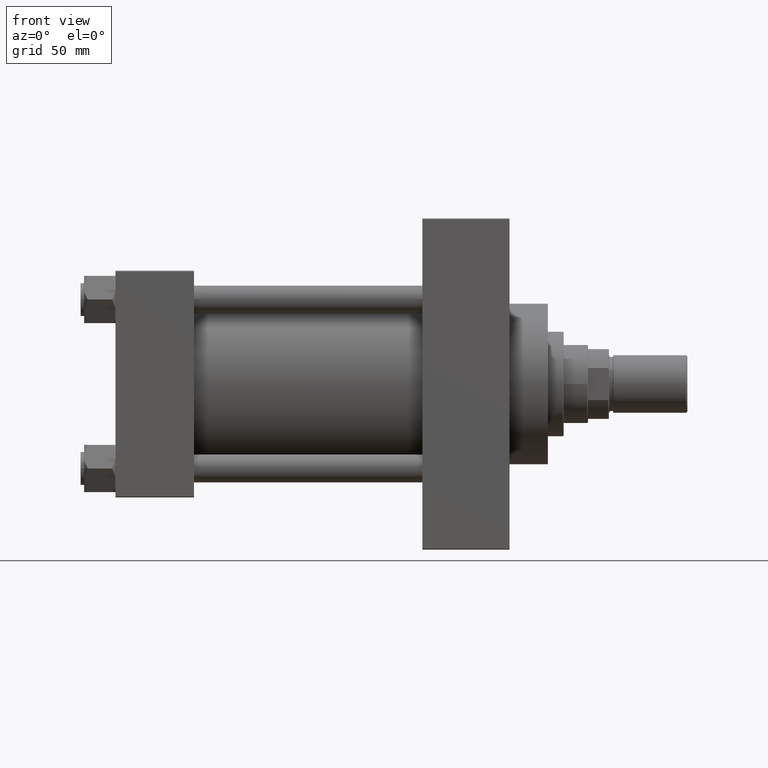
[diagram: clean part render]
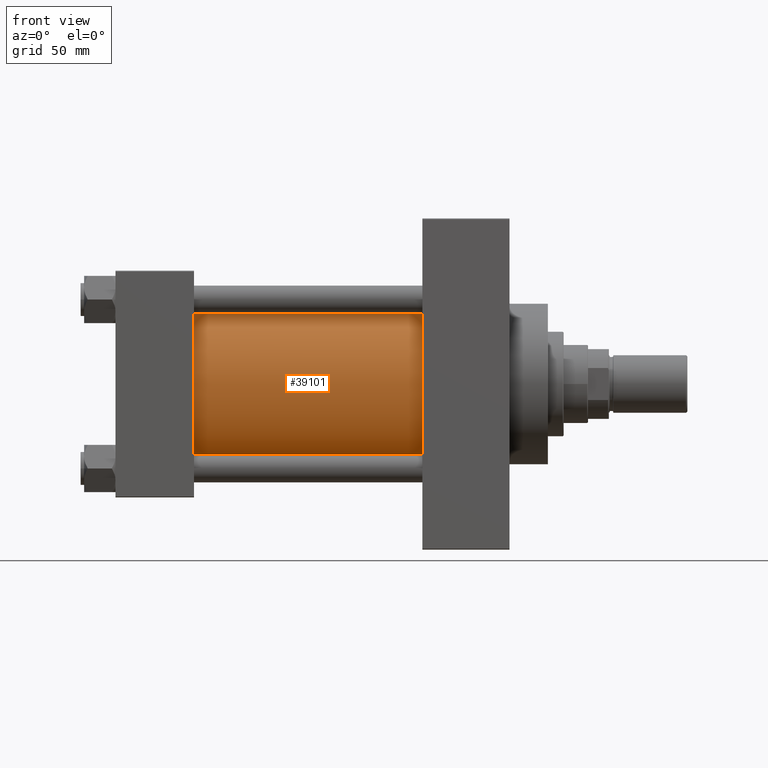
[diagram: same view with one face highlighted and labeled with its STEP entity id]
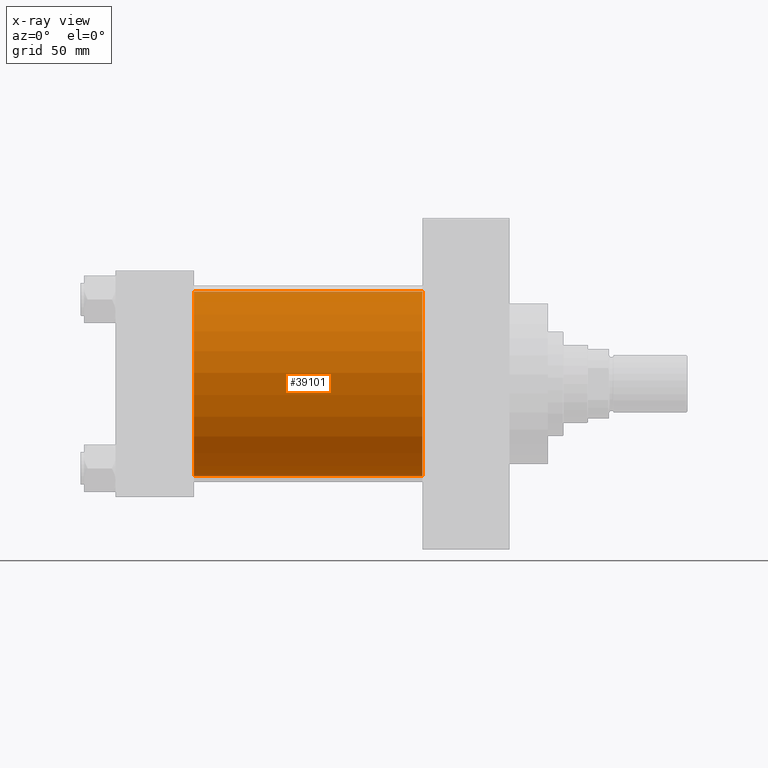
[diagram: x-ray of the same camera — body ghosted, the highlighted face saturated]
A machine part, front view. The second image highlights one B-rep face of the part: STEP entity #39101.
The next image is the same camera in x-ray: the body ghosted, the highlighted face saturated — about 2% of this face is hidden behind the body in this view.
In plain terms, the highlighted cylindrical surface (partial cylindrical patch) has radius 53 mm, axis along (-1, -0, -0).
Its self-contained STEP definition (entity closure, byte-faithful):
#206 = DIRECTION ( 'NONE',  ( 0.000000000000000000, 0.000000000000000000, -1.000000000000000000 ) ) ;
#1028 = AXIS2_PLACEMENT_3D ( 'NONE', #8164, #39261, #35443 ) ;
#2163 = ORIENTED_EDGE ( 'NONE', *, *, #26182, .F. ) ;
#5388 = VERTEX_POINT ( 'NONE', #26662 ) ;
#6918 = EDGE_CURVE ( 'NONE', #38944, #14144, #36858, .T. ) ;
#8164 = CARTESIAN_POINT ( 'NONE',  ( 44.99999999999998579, -2.602085213965210642E-15, 0.000000000000000000 ) ) ;
#8254 = EDGE_CURVE ( 'NONE', #5388, #14144, #29002, .T. ) ;
#8901 = CARTESIAN_POINT ( 'NONE',  ( 176.0000000000000000, -2.602085213965210642E-15, 53.00000000000000711 ) ) ;
#8985 = ORIENTED_EDGE ( 'NONE', *, *, #6918, .T. ) ;
#10234 = DIRECTION ( 'NONE',  ( -1.000000000000000000, -0.000000000000000000, -0.000000000000000000 ) ) ;
#10681 = CARTESIAN_POINT ( 'NONE',  ( 44.99999999999998579, 3.888542821515762466E-15, -53.00000000000000711 ) ) ;
#10976 = CYLINDRICAL_SURFACE ( 'NONE', #15419, 53.00000000000000711 ) ;
#14144 = VERTEX_POINT ( 'NONE', #10681 ) ;
#15419 = AXIS2_PLACEMENT_3D ( 'NONE', #37253, #10234, #33442 ) ;
#19124 = CIRCLE ( 'NONE', #38687, 53.00000000000000711 ) ;
#19226 = ORIENTED_EDGE ( 'NONE', *, *, #8254, .F. ) ;
#20103 = CARTESIAN_POINT ( 'NONE',  ( 176.0000000000000000, -2.602085213965210642E-15, 0.000000000000000000 ) ) ;
#21353 = LINE ( 'NONE', #8901, #24778 ) ;
#22894 = ORIENTED_EDGE ( 'NONE', *, *, #24124, .T. ) ;
#23721 = DIRECTION ( 'NONE',  ( -1.000000000000000000, -0.000000000000000000, -0.000000000000000000 ) ) ;
#23937 = DIRECTION ( 'NONE',  ( 1.000000000000000000, 0.000000000000000000, 0.000000000000000000 ) ) ;
#23949 = EDGE_LOOP ( 'NONE', ( #19226, #2163, #22894, #8985 ) ) ;
#24124 = EDGE_CURVE ( 'NONE', #24183, #38944, #21353, .T. ) ;
#24183 = VERTEX_POINT ( 'NONE', #43829 ) ;
#24778 = VECTOR ( 'NONE', #36410, 1000.000000000000000 ) ;
#26182 = EDGE_CURVE ( 'NONE', #24183, #5388, #19124, .T. ) ;
#26662 = CARTESIAN_POINT ( 'NONE',  ( 176.0000000000000000, 3.888542821515762466E-15, -53.00000000000000711 ) ) ;
#29002 = LINE ( 'NONE', #36882, #32034 ) ;
#29613 = FACE_OUTER_BOUND ( 'NONE', #23949, .T. ) ;
#32034 = VECTOR ( 'NONE', #23721, 1000.000000000000000 ) ;
#33442 = DIRECTION ( 'NONE',  ( 0.000000000000000000, 0.000000000000000000, 1.000000000000000000 ) ) ;
#35443 = DIRECTION ( 'NONE',  ( 0.000000000000000000, 0.000000000000000000, 1.000000000000000000 ) ) ;
#35749 = CARTESIAN_POINT ( 'NONE',  ( 44.99999999999998579, -2.602085213965210642E-15, 53.00000000000000711 ) ) ;
#36410 = DIRECTION ( 'NONE',  ( -1.000000000000000000, -0.000000000000000000, -0.000000000000000000 ) ) ;
#36858 = CIRCLE ( 'NONE', #1028, 53.00000000000000711 ) ;
#36882 = CARTESIAN_POINT ( 'NONE',  ( 176.0000000000000000, 3.888542821515762466E-15, -53.00000000000000711 ) ) ;
#37253 = CARTESIAN_POINT ( 'NONE',  ( 176.0000000000000000, -2.602085213965210642E-15, 0.000000000000000000 ) ) ;
#38687 = AXIS2_PLACEMENT_3D ( 'NONE', #20103, #23937, #206 ) ;
#38944 = VERTEX_POINT ( 'NONE', #35749 ) ;
#39101 = ADVANCED_FACE ( 'NONE', ( #29613 ), #10976, .T. ) ;
#39261 = DIRECTION ( 'NONE',  ( 1.000000000000000000, -0.000000000000000000, 0.000000000000000000 ) ) ;
#43829 = CARTESIAN_POINT ( 'NONE',  ( 176.0000000000000000, -2.602085213965210642E-15, 53.00000000000000711 ) ) ;